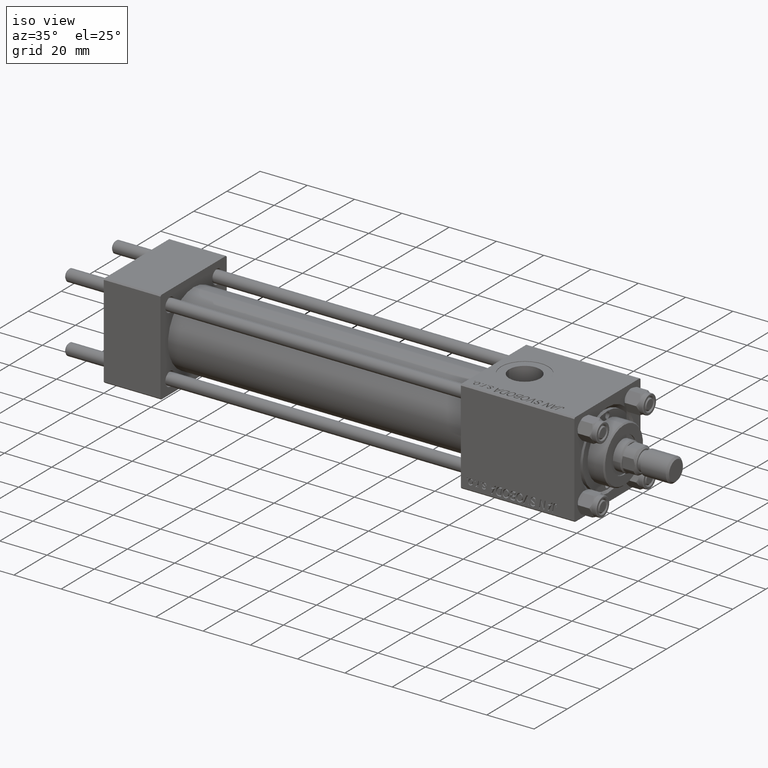
[diagram: clean part render]
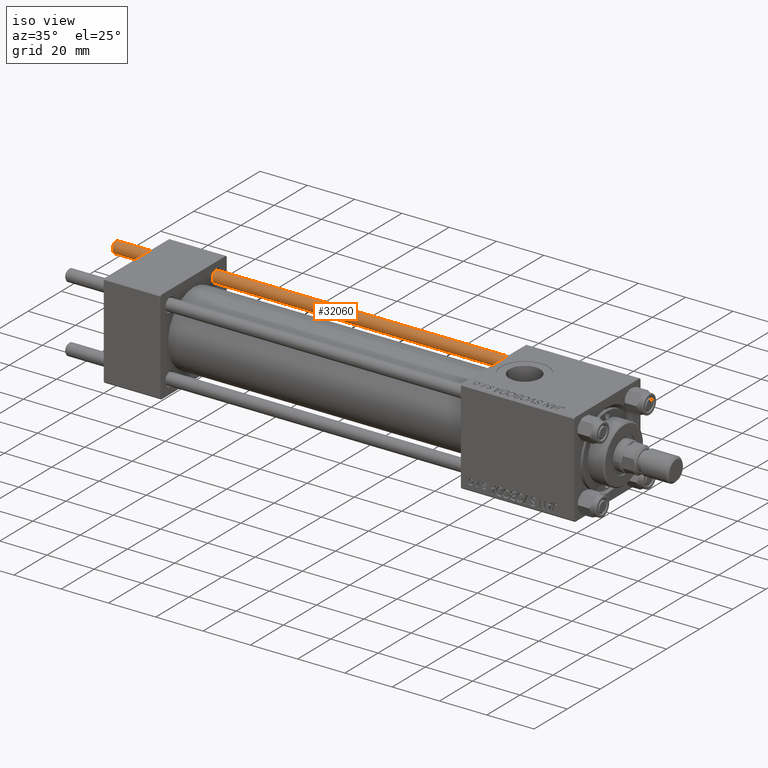
[diagram: same view with one face highlighted and labeled with its STEP entity id]
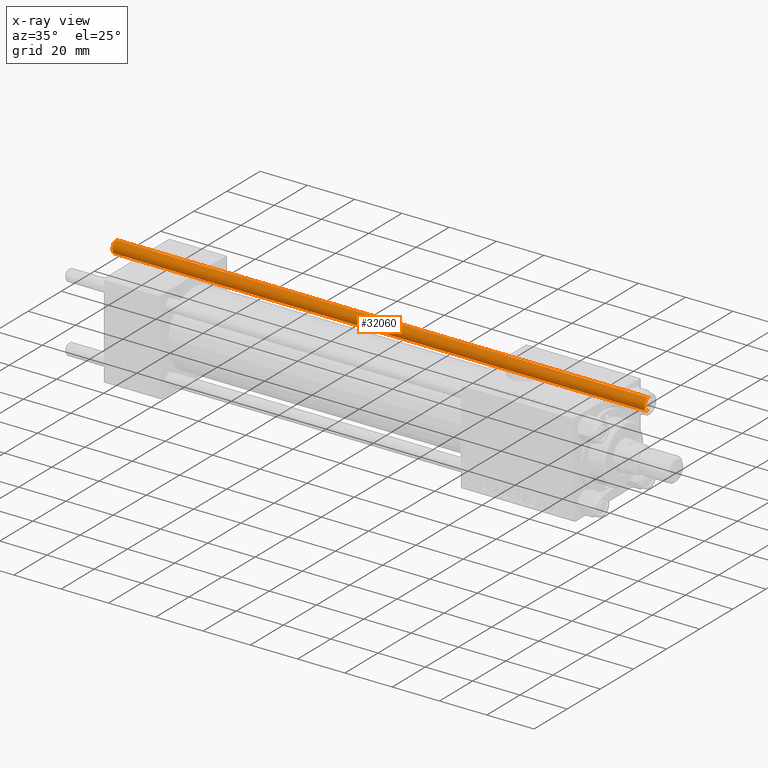
[diagram: x-ray of the same camera — body ghosted, the highlighted face saturated]
A machine part, iso view. The second image highlights one B-rep face of the part: STEP entity #32060.
The next image is the same camera in x-ray: the body ghosted, the highlighted face saturated — about 0% of this face is hidden behind the body in this view.
In plain terms, the highlighted cylindrical surface (edge-blend (fillet) strip) has radius 2.5 mm, axis along (-1, -0, -0).
Its self-contained STEP definition (entity closure, byte-faithful):
#436 = AXIS2_PLACEMENT_3D ( 'NONE', #1254, #28514, #36419 ) ;
#1254 = CARTESIAN_POINT ( 'NONE',  ( 0.000000000000000000, 0.000000000000000000, 225.5000000000000284 ) ) ;
#1399 = ORIENTED_EDGE ( 'NONE', *, *, #28310, .F. ) ;
#2261 = CARTESIAN_POINT ( 'NONE',  ( -2.500000000000000000, 0.000000000000000000, 226.0000000000000000 ) ) ;
#2751 = FACE_OUTER_BOUND ( 'NONE', #36995, .T. ) ;
#4216 = ORIENTED_EDGE ( 'NONE', *, *, #8756, .T. ) ;
#4595 = VERTEX_POINT ( 'NONE', #24494 ) ;
#5301 = CIRCLE ( 'NONE', #436, 2.500000000000000000 ) ;
#6029 = VERTEX_POINT ( 'NONE', #20274 ) ;
#8756 = EDGE_CURVE ( 'NONE', #6029, #4595, #26132, .T. ) ;
#10642 = AXIS2_PLACEMENT_3D ( 'NONE', #20485, #36027, #40617 ) ;
#13769 = CARTESIAN_POINT ( 'NONE',  ( 2.500000000000000000, 3.061616997868383141E-16, 225.5000000000000284 ) ) ;
#15182 = CARTESIAN_POINT ( 'NONE',  ( -2.500000000000000000, 0.000000000000000000, 225.5000000000000284 ) ) ;
#17807 = CYLINDRICAL_SURFACE ( 'NONE', #31073, 2.500000000000000000 ) ;
#18100 = VECTOR ( 'NONE', #23679, 1000.000000000000000 ) ;
#18422 = VECTOR ( 'NONE', #22646, 1000.000000000000000 ) ;
#20274 = CARTESIAN_POINT ( 'NONE',  ( -2.500000000000000000, 0.000000000000000000, 0.4999999999999726885 ) ) ;
#20485 = CARTESIAN_POINT ( 'NONE',  ( 0.000000000000000000, 0.000000000000000000, 0.4999999999999726885 ) ) ;
#21149 = VERTEX_POINT ( 'NONE', #13769 ) ;
#22646 = DIRECTION ( 'NONE',  ( -0.000000000000000000, -0.000000000000000000, -1.000000000000000000 ) ) ;
#23679 = DIRECTION ( 'NONE',  ( -0.000000000000000000, -0.000000000000000000, -1.000000000000000000 ) ) ;
#23929 = CARTESIAN_POINT ( 'NONE',  ( 2.500000000000000000, 3.061616997868383141E-16, 226.0000000000000000 ) ) ;
#24494 = CARTESIAN_POINT ( 'NONE',  ( 2.500000000000000000, 3.061616997868383141E-16, 0.4999999999999726885 ) ) ;
#25143 = ORIENTED_EDGE ( 'NONE', *, *, #45453, .T. ) ;
#25537 = ORIENTED_EDGE ( 'NONE', *, *, #38907, .T. ) ;
#25943 = CARTESIAN_POINT ( 'NONE',  ( 0.000000000000000000, 0.000000000000000000, 226.0000000000000000 ) ) ;
#26132 = CIRCLE ( 'NONE', #10642, 2.500000000000000000 ) ;
#28310 = EDGE_CURVE ( 'NONE', #21149, #4595, #47877, .T. ) ;
#28514 = DIRECTION ( 'NONE',  ( 0.000000000000000000, 0.000000000000000000, -1.000000000000000000 ) ) ;
#31073 = AXIS2_PLACEMENT_3D ( 'NONE', #25943, #41264, #44573 ) ;
#32060 = ADVANCED_FACE ( 'NONE', ( #2751 ), #17807, .T. ) ;
#33351 = LINE ( 'NONE', #2261, #18422 ) ;
#35815 = VERTEX_POINT ( 'NONE', #15182 ) ;
#36027 = DIRECTION ( 'NONE',  ( -0.000000000000000000, -0.000000000000000000, 1.000000000000000000 ) ) ;
#36419 = DIRECTION ( 'NONE',  ( 1.000000000000000000, 0.000000000000000000, 0.000000000000000000 ) ) ;
#36995 = EDGE_LOOP ( 'NONE', ( #1399, #25537, #25143, #4216 ) ) ;
#38907 = EDGE_CURVE ( 'NONE', #21149, #35815, #5301, .T. ) ;
#40617 = DIRECTION ( 'NONE',  ( 1.000000000000000000, 0.000000000000000000, 0.000000000000000000 ) ) ;
#41264 = DIRECTION ( 'NONE',  ( -0.000000000000000000, -0.000000000000000000, -1.000000000000000000 ) ) ;
#44573 = DIRECTION ( 'NONE',  ( -1.000000000000000000, 0.000000000000000000, 0.000000000000000000 ) ) ;
#45453 = EDGE_CURVE ( 'NONE', #35815, #6029, #33351, .T. ) ;
#47877 = LINE ( 'NONE', #23929, #18100 ) ;